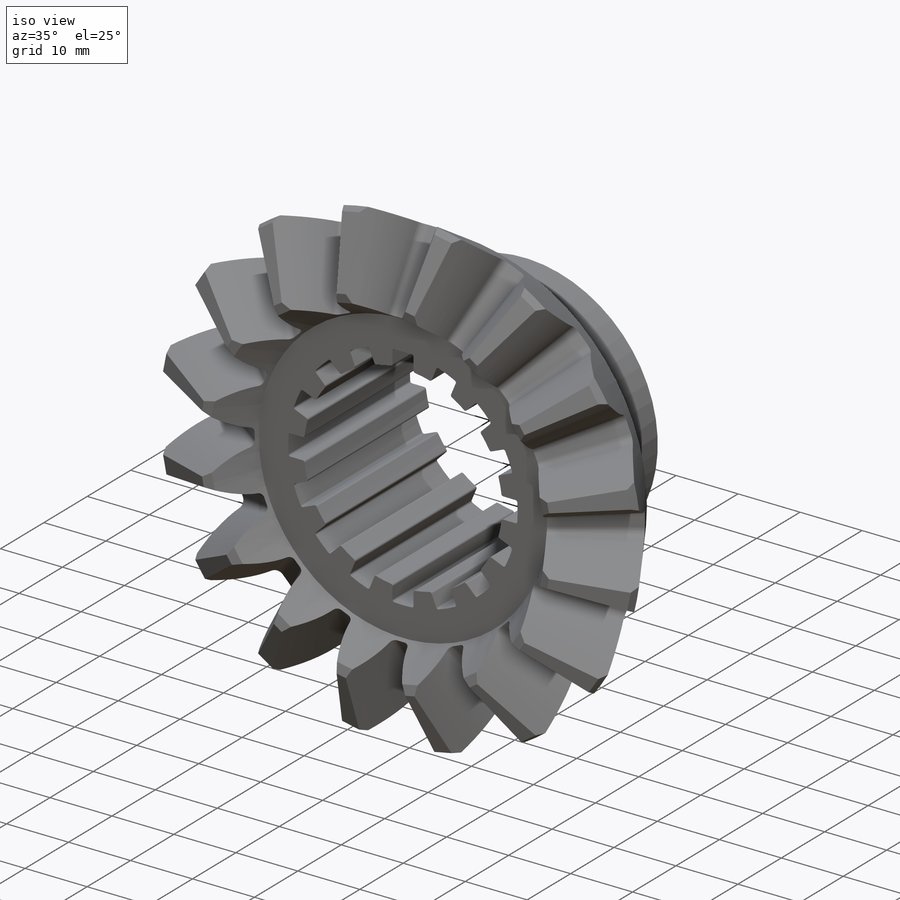
[diagram: iso view]
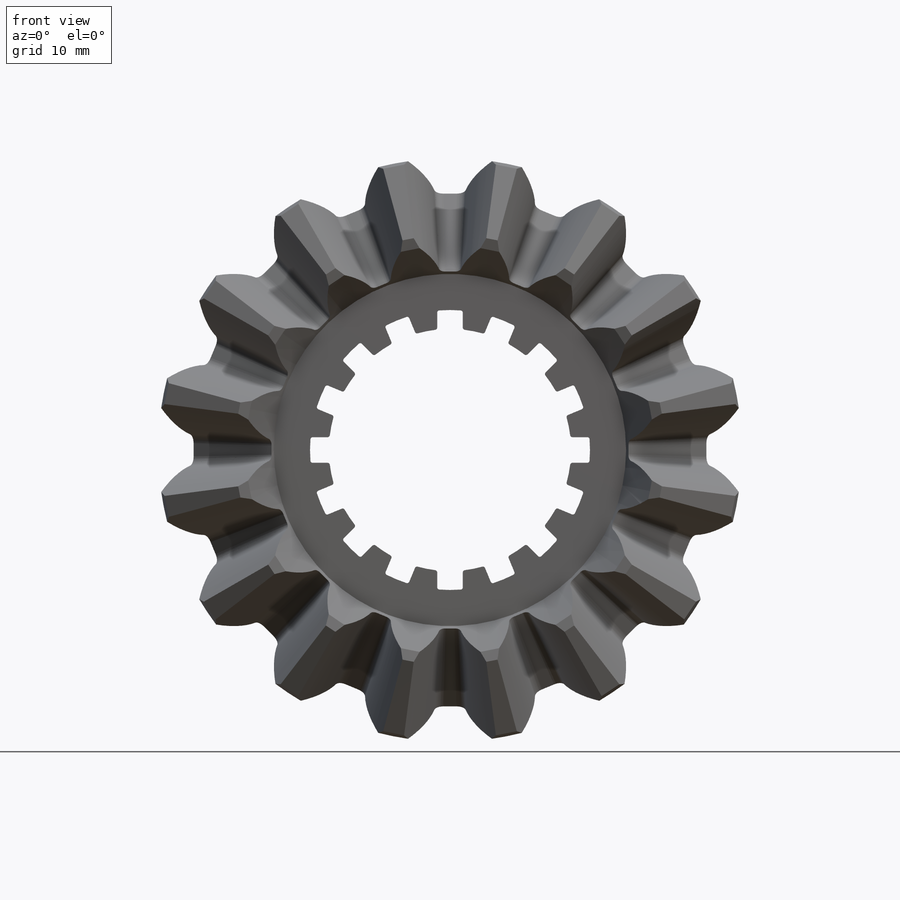
[diagram: front view]
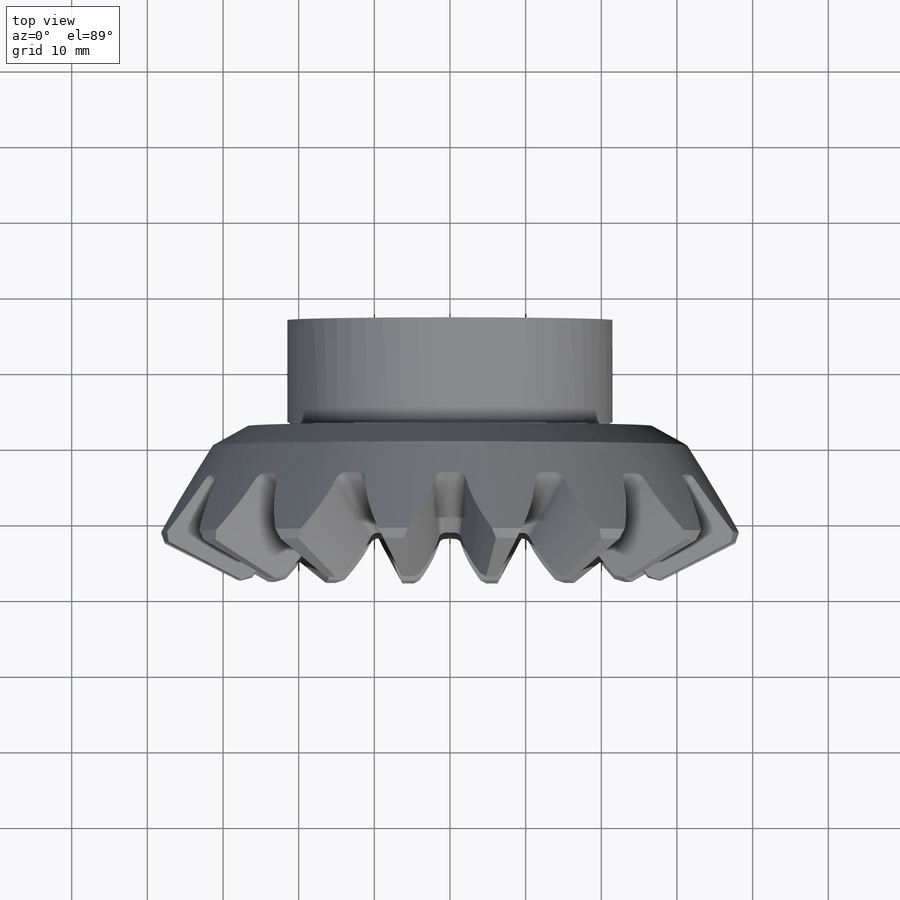
[diagram: top view]
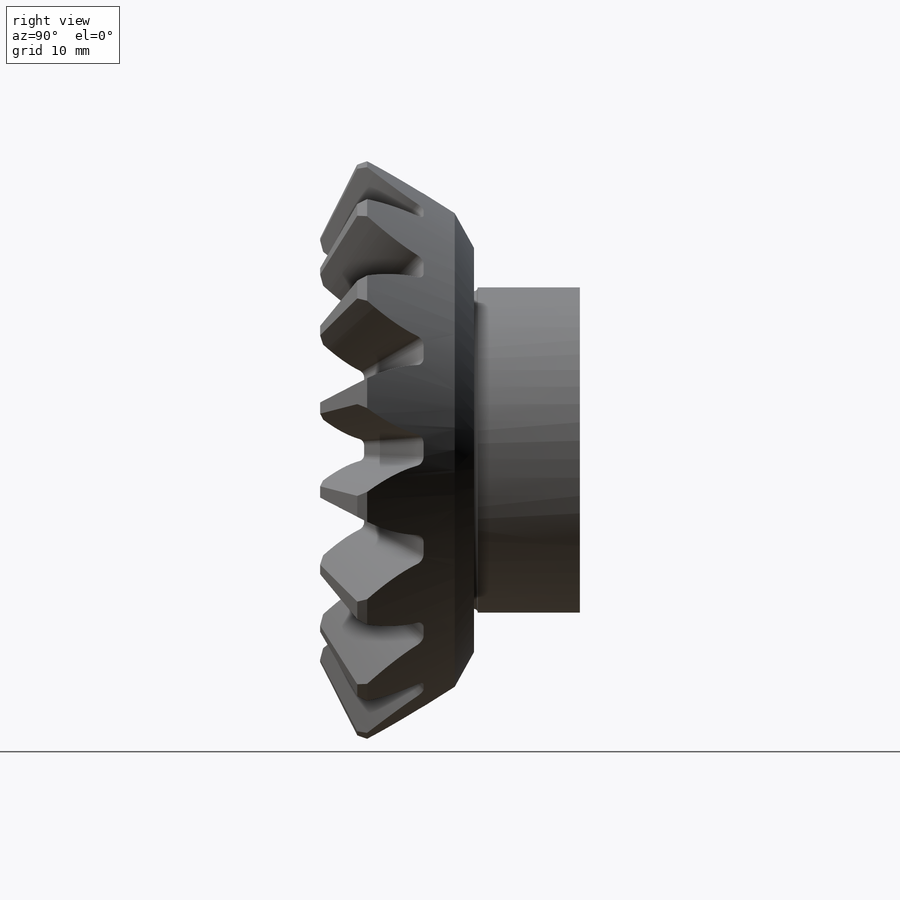
[diagram: right view]
SOLIDWORKS PART (.sldprt)
format: sldprt  version: not decoded by parser v0  size: 719,360 bytes
history: native  units: mm
features: plane x5, sketch x4, revolve x2, material x1, pattern_circular x1, chamfer x1, extrude x1, fillet x1 + 1 further entry (+8 scaffold rows collapsed)
feature tree (25):
  scaffold x8  (default folders/planes/origin — collapsed)
  material  "1.2311 (40CrMnMo7)"
  plane  "Płaszczyzna przednia"
  plane  "Płaszczyzna górna"
  plane  "Płaszczyzna prawa"
  sketch  "Bevel-BaseSketch"  dims[c1.Fillet=~2.812522mm c1.D10=1.0mm c1.D8=3.0mm c1.Hub Mounting=28.7894mm c1.Hub Surface=~32.069519mm c1.Back Cone Angle=~122.005383deg c1.Back Cone=~13.266597mm c1.Face Width=~12.962804mm c1.Web Thickness=~5.625044mm c1.Face Angle=~63.371899deg c1.D1=177.98mm c2.D1=~63.371899deg c2.D2=10.0mm c2.D3=~11.425751mm c2.D12=1.0mm c2.D8=1.0mm c2.D9=1.0mm c2.D14=1.0mm c3.D3=30.0mm c3.D6=21.5mm c3.D7=18.5mm c3.D11=~28.491996mm c3.D12=~11.541723mm c3.D13=90.0deg c3.D2=12.0mm c4.D12=8.0mm c4.D3=37.0mm c4.D13=14.0mm c4.D8=8.0mm c4.D9=~5.272912mm c5.D3=37.0mm c5.D9=0.5mm c5.D12=1.0mm c5.D2=28.0mm c6.D3=14.0mm c6.D11=~29.741996mm c6.D12=~10.402054mm]
  revolve  "Obrót1"  Angle=360deg
  "Oś2"
  plane  "PlaneAtAngle"
  plane  "PlaneAtOffset"  Offset=42.453259mm
  sketch  "Tooth-Sketch; Clearance: 0,0000mm"
  sketch  "Apex"
  pattern_circular  "Szyk kołowy2"  Count=16 Angle=22.5deg
  chamfer  "Sfazowanie1"  Distance=3mm
  sketch  "Szkic1"  dims[c1.D1=32.0mm c1.D2=~35.275125mm c2.D2=11.25deg]
  extrude  "Dodanie-wyciągnięcie1"  [1 undecoded]
  fillet  "Zaokrąglenie1"  Radius=0.3mm
  revolve  "Szyk kołowy3"  Angle=360deg
decode coverage: 7 of 10 modeling features carry decoded parameters; 1 rows unclassified (native names shown)
note: ~ marks probable driven/reference dimensions
note: 1 parameter value undecoded
note: suppression state not decoded; provenance and decode notes live in map.json
